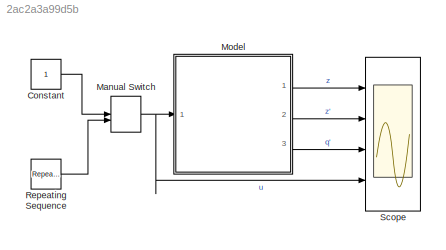
MODEL slx_2ac2a3a99d5b
KIND model
CONFIG AbsTol = auto
CONFIG FixedStep = 0.001
CONFIG MaxStep = 0.001
CONFIG MinStep = auto
CONFIG RelTol = 1e-3
CONFIG SampleTimeConstraint = Unconstrained
CONFIG Solver = ode45
CONFIG SolverMode = Auto
CONFIG SolverName = ode45
CONFIG StartTime = 0.0
CONFIG StopTime = sim_time
BLOCK [Constant] Constant
BLOCK [ManualSwitch] Manual Switch
  CurrentSetting = 0
BLOCK [ModelReference] Model
  CopyOfModelName = plant_model_for_linearization
  DefaultDataLogging = on
  ModelNameDialog = plant_model_for_linearization
  ModelReferenceVersion = 1.10
  Ports = [1, 3]
BLOCK [Reference] Repeating Sequence  REF=simulink/Sources/Repeating
Sequence
  Ports = [0, 1]
  SourceBlock = simulink/Sources/Repeating\nSequence
  SourceType = Repeating table
  rep_seq_t = [0 1 10]
  rep_seq_y = [0 1 1]
BLOCK [Scope] Scope
  DataFormat = StructureWithTime
  Floating = off
  LimitDataPoints = off
  NumInputPorts = 4
  Ports = [4]
  SaveName = out
  SaveToWorkspace = on
  ShowLegends = on
  YMax = 0.01417~0.33914~3.08191~1.1
  YMin = -0.00157~-2.02648~-0.34243~0.9
LINE Constant:1 -> Manual Switch:1
NET Manual Switch:1 -> Model:1, Scope:4
LINE Model:1 -> Scope:1
LINE Model:2 -> Scope:2
LINE Model:3 -> Scope:3
LINE Repeating Sequence:1 -> Manual Switch:2
note: NET lines group one-source signal fan-out (src -> all destinations, sorted); 1:1 wires keep LINE
